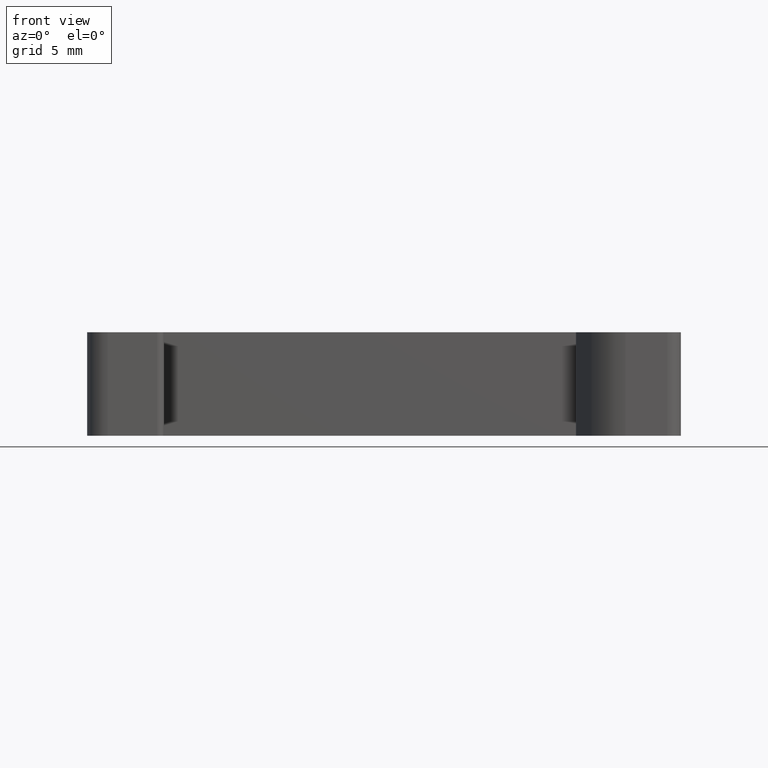
[diagram: clean part render]
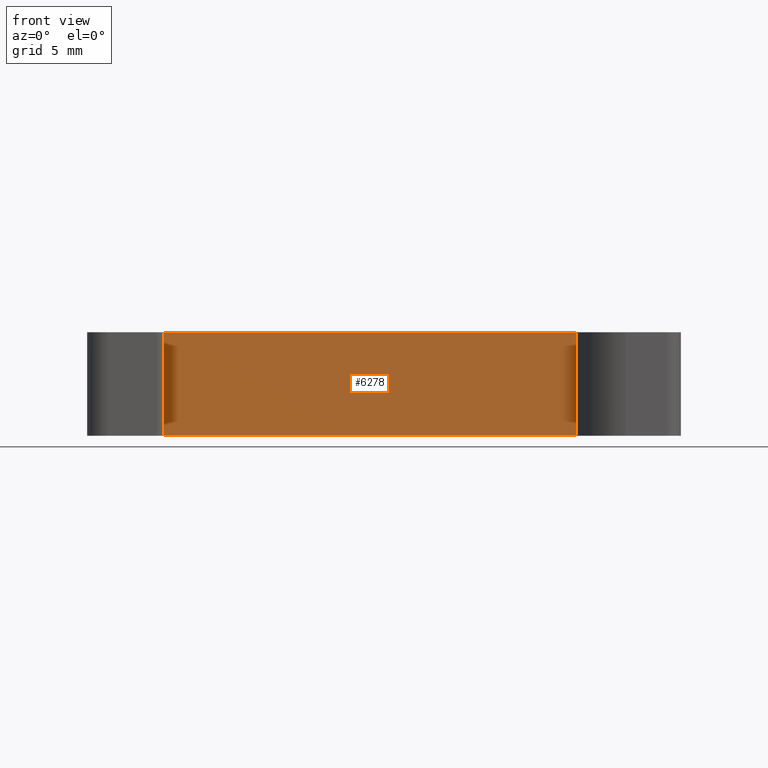
[diagram: same view with one face highlighted and labeled with its STEP entity id]
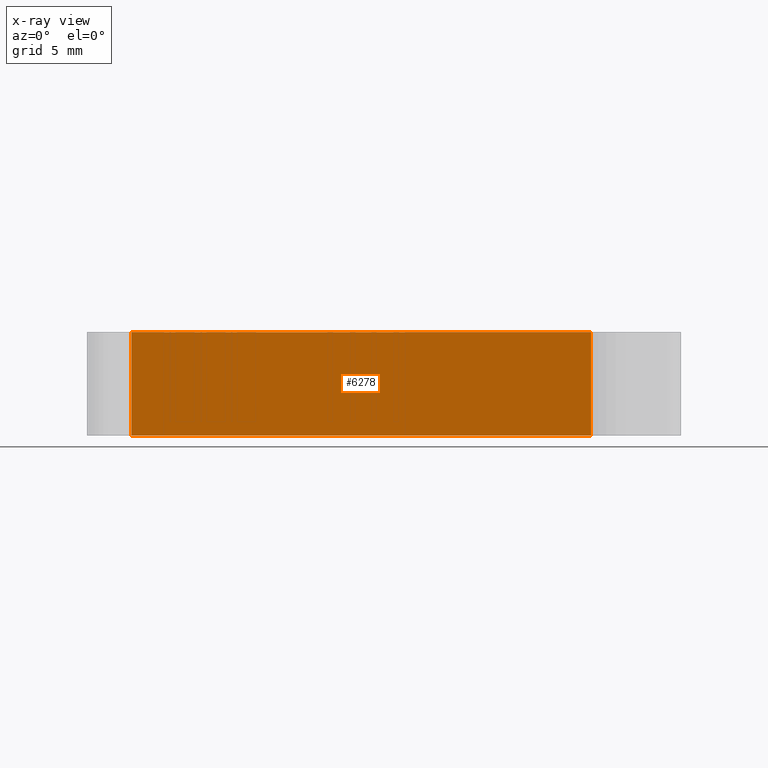
[diagram: x-ray of the same camera — body ghosted, the highlighted face saturated]
A machine part, front view. The second image highlights one B-rep face of the part: STEP entity #6278.
The next image is the same camera in x-ray: the body ghosted, the highlighted face saturated — about 0% of this face is hidden behind the body in this view.
In plain terms, the highlighted planar face has unit normal (0, 1, 0).
Its self-contained STEP definition (entity closure, byte-faithful):
#30 = EDGE_LOOP ( 'NONE', ( #564, #575, #545, #555 ) ) ;
#545 = ORIENTED_EDGE ( 'NONE', *, *, #3807, .T. ) ;
#555 = ORIENTED_EDGE ( 'NONE', *, *, #4986, .F. ) ;
#564 = ORIENTED_EDGE ( 'NONE', *, *, #5041, .F. ) ;
#575 = ORIENTED_EDGE ( 'NONE', *, *, #4970, .F. ) ;
#1498 = CARTESIAN_POINT ( 'NONE',  ( -5.375844509619127200, -28.02002127715749000, 3.703157397815194900E-012 ) ) ;
#1604 = CARTESIAN_POINT ( 'NONE',  ( -5.375844509619127200, -28.02002127715749000, 7.499999999996208400 ) ) ;
#1632 = CARTESIAN_POINT ( 'NONE',  ( 27.92415554633113600, -28.02002127715748600, 3.703142883639764100E-012 ) ) ;
#1649 = CARTESIAN_POINT ( 'NONE',  ( 27.92415554633113200, -28.02002127715749000, 7.499999999996208400 ) ) ;
#1859 = VERTEX_POINT ( 'NONE', #1498 ) ;
#1868 = VERTEX_POINT ( 'NONE', #1604 ) ;
#1963 = VERTEX_POINT ( 'NONE', #1649 ) ;
#1970 = VERTEX_POINT ( 'NONE', #1632 ) ;
#2631 = VECTOR ( 'NONE', #3938, 1000.000000000000000 ) ;
#2787 = VECTOR ( 'NONE', #5517, 1000.000000000000000 ) ;
#2819 = VECTOR ( 'NONE', #5563, 1000.000000000000000 ) ;
#2866 = VECTOR ( 'NONE', #3683, 1000.000000000000000 ) ;
#3146 = AXIS2_PLACEMENT_3D ( 'NONE', #5968, #5966, #6006 ) ;
#3679 = CARTESIAN_POINT ( 'NONE',  ( 16.92415554634213500, -28.02002127715749000, 7.499999999996208400 ) ) ;
#3682 = LINE ( 'NONE', #3679, #2866 ) ;
#3683 = DIRECTION ( 'NONE',  ( 1.000000000000000000, -0.0000000000000000000, 0.0000000000000000000 ) ) ;
#3807 = EDGE_CURVE ( 'NONE', #1859, #1970, #3912, .T. ) ;
#3912 = LINE ( 'NONE', #3933, #2631 ) ;
#3933 = CARTESIAN_POINT ( 'NONE',  ( 16.92415554634213500, -28.02002127715749000, 3.703026770236314500E-012 ) ) ;
#3938 = DIRECTION ( 'NONE',  ( 1.000000000000000000, 0.0000000000000000000, -0.0000000000000000000 ) ) ;
#4970 = EDGE_CURVE ( 'NONE', #1859, #1868, #5488, .T. ) ;
#4986 = EDGE_CURVE ( 'NONE', #1963, #1970, #5545, .T. ) ;
#5041 = EDGE_CURVE ( 'NONE', #1868, #1963, #3682, .T. ) ;
#5488 = LINE ( 'NONE', #5497, #2787 ) ;
#5497 = CARTESIAN_POINT ( 'NONE',  ( -5.375844509619127200, -28.02002127715749000, 3.749999999999953800 ) ) ;
#5517 = DIRECTION ( 'NONE',  ( 0.0000000000000000000, -0.0000000000000000000, 1.000000000000000000 ) ) ;
#5545 = LINE ( 'NONE', #5557, #2819 ) ;
#5557 = CARTESIAN_POINT ( 'NONE',  ( 27.92415554633113200, -28.02002127715749000, 3.749999999999953800 ) ) ;
#5563 = DIRECTION ( 'NONE',  ( -0.0000000000000000000, 0.0000000000000000000, -1.000000000000000000 ) ) ;
#5966 = DIRECTION ( 'NONE',  ( 0.0000000000000000000, 1.000000000000000000, 0.0000000000000000000 ) ) ;
#5968 = CARTESIAN_POINT ( 'NONE',  ( -5.375844509619127200, -28.02002127715749000, 3.749999999999953800 ) ) ;
#5969 = PLANE ( 'NONE',  #3146 ) ;
#6002 = FACE_OUTER_BOUND ( 'NONE', #30, .T. ) ;
#6006 = DIRECTION ( 'NONE',  ( 0.0000000000000000000, -0.0000000000000000000, 1.000000000000000000 ) ) ;
#6278 = ADVANCED_FACE ( 'NONE', ( #6002 ), #5969, .F. ) ;